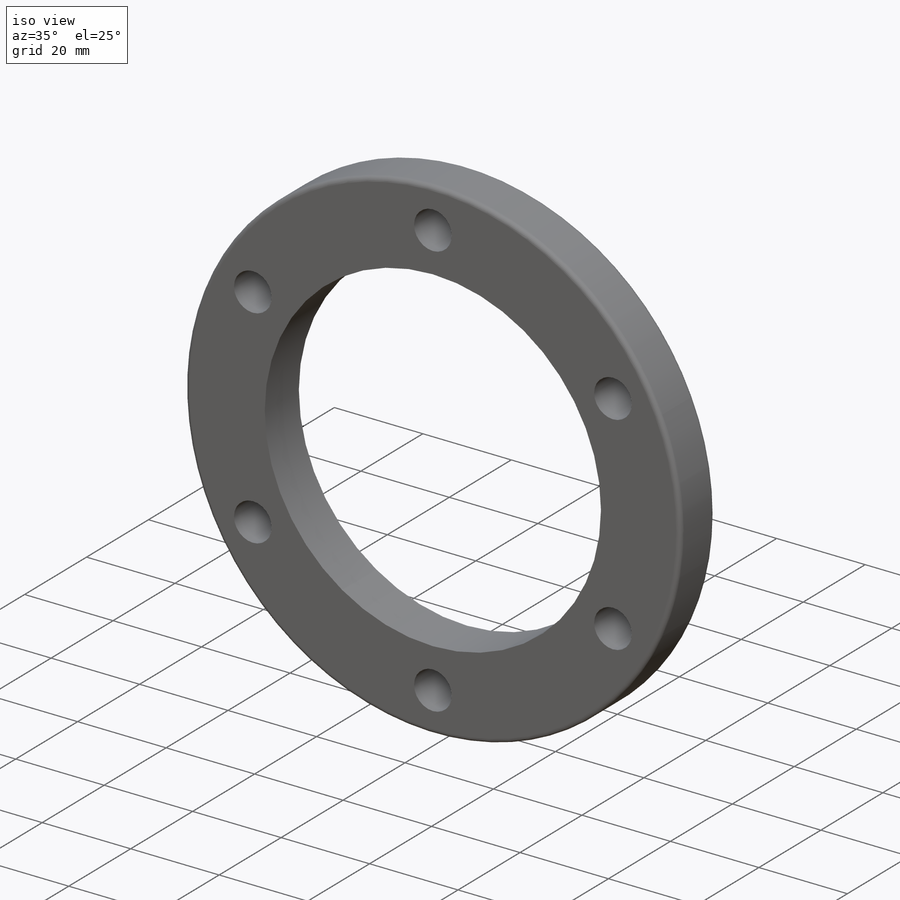
[diagram: iso view]
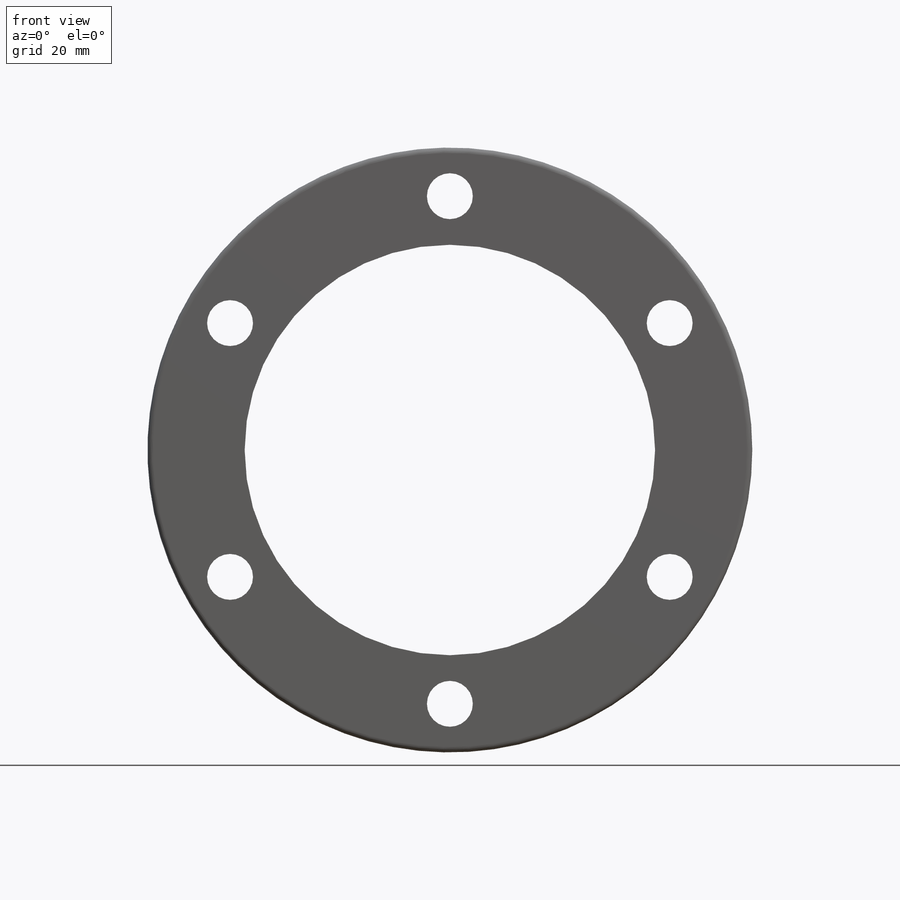
[diagram: front view]
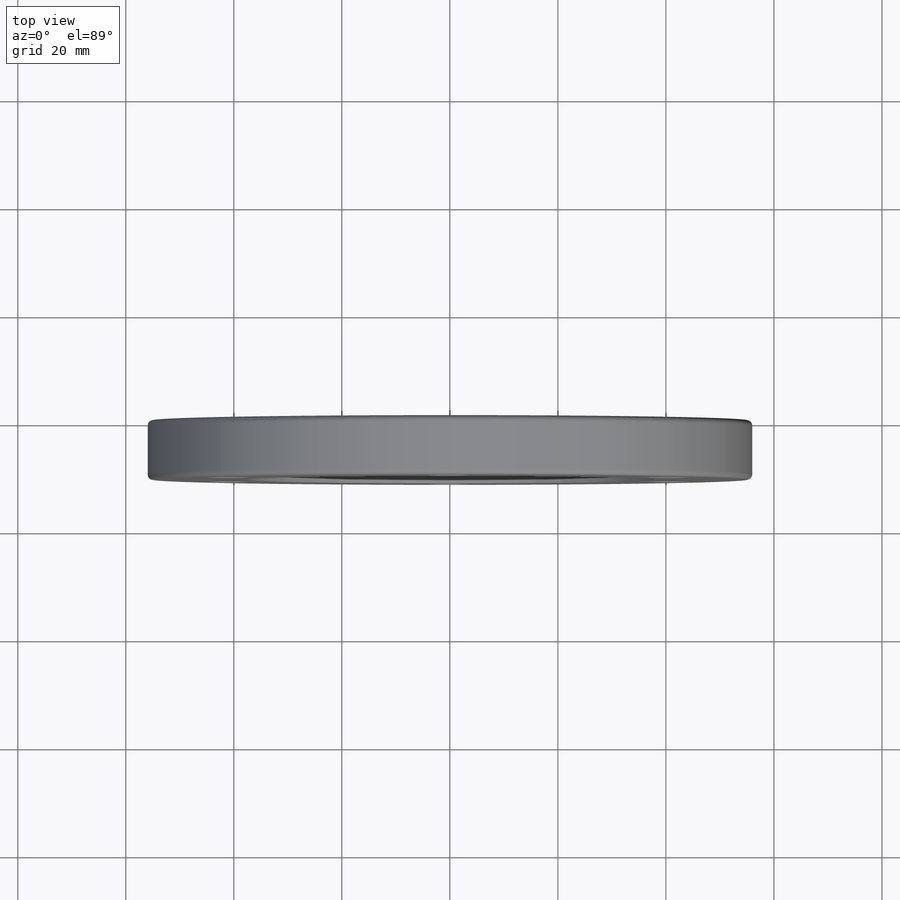
[diagram: top view]
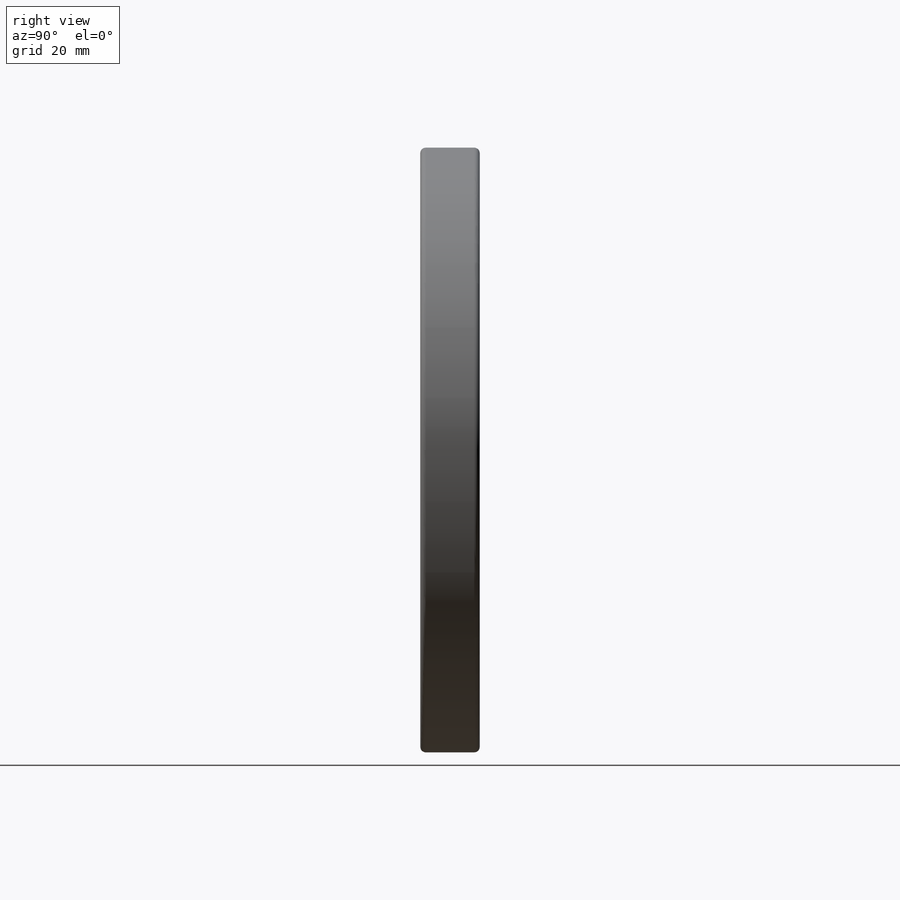
[diagram: right view]
SOLIDWORKS PART (.sldprt)
format: sldprt  version: not decoded by parser v0  size: 213,504 bytes
history: native  units: mm
features: plane x3, sketch x3, cut_extrude x2, fillet x2, material x1, extrude x1 (+10 scaffold rows collapsed)
feature tree (22):
  scaffold x10  (default folders/planes/origin — collapsed)
  material  "Matériau <non spécifié>"
  plane  "Plan de face"
  plane  "Plan de dessus"
  plane  "Plan de droite"
  sketch  "Esquisse1"  dims[D1=112.0mm D2=76.0mm]
  extrude  "Boss.-Extru.1"  Depth=11mm
  sketch  "Esquisse2"  dims[D1=8.5mm D2=8.5mm D3=8.5mm D4=8.5mm D5=8.5mm D6=8.5mm D7=47.0mm D8=47.0mm D9=47.0mm D10=47.0mm D11=47.0mm D12=47.0mm D13=47.0mm D14=47.0mm D15=47.0mm D16=47.0mm D17=47.0mm D18=47.0mm]
  cut_extrude  "Enlèv. mat.-Extru.2"  Depth=11mm
  cut_extrude  "Enlèv. mat.-Extru.3"  [1 undecoded]
  sketch  "Esquisse2<5>"
  fillet  "Congé1"  Radius=1mm
  fillet  "Congé2"  Radius=1mm
decode coverage: 6 of 8 modeling features carry decoded parameters
note: 1 parameter value undecoded
note: suppression state not decoded; provenance and decode notes live in map.json
